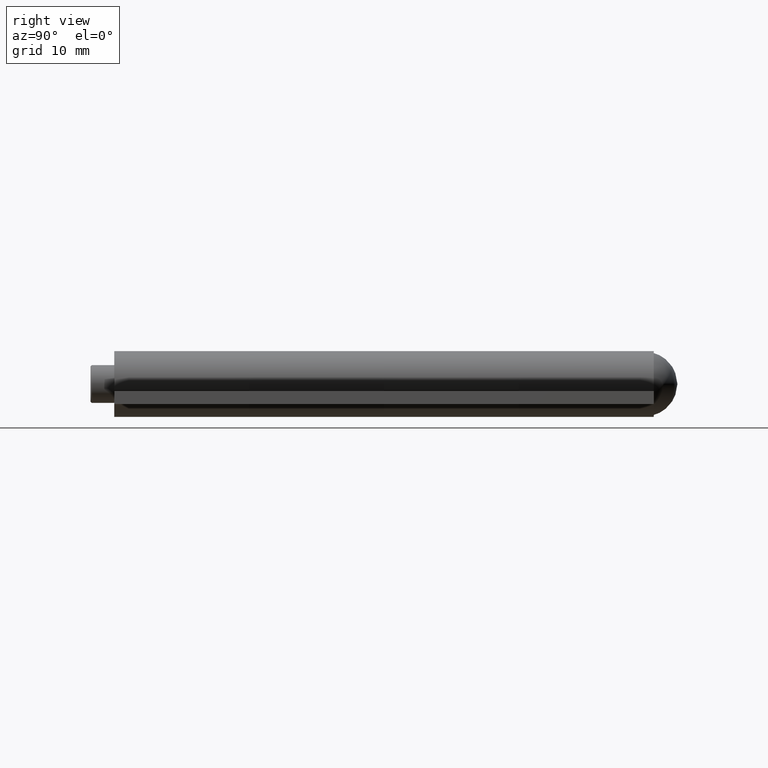
[diagram: clean part render]
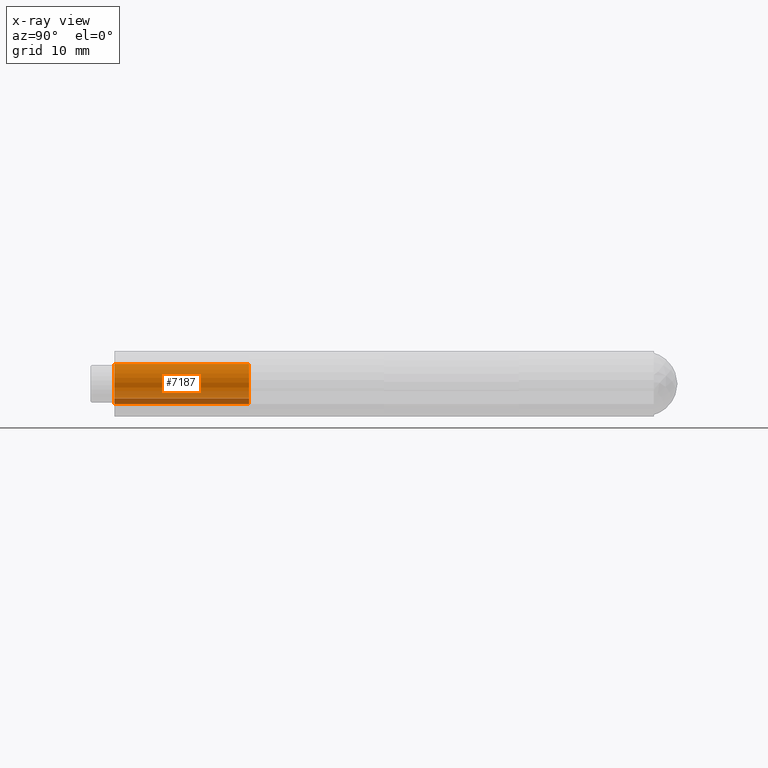
[diagram: x-ray — body ghosted, one internal face saturated and labeled with its STEP entity id]
A machine part, right view, then the same camera in x-ray: the body is ghosted and one INTERNAL B-rep face — a face not visible from any outside direction — is saturated and labeled: STEP entity #7187.
In plain terms, the highlighted cylindrical surface (edge-blend (fillet) strip) has radius 1.85 mm, axis along (0, 1, -0).
Its self-contained STEP definition (entity closure, byte-faithful):
#8 = CARTESIAN_POINT ( 'NONE',  ( -1.288352935804951027, 25.00000000000000000, -1.327647058823528514 ) ) ;
#280 = VERTEX_POINT ( 'NONE', #4200 ) ;
#357 = EDGE_LOOP ( 'NONE', ( #10058, #4998, #2402, #2741 ) ) ;
#664 = EDGE_CURVE ( 'NONE', #1003, #3884, #8104, .T. ) ;
#835 = CARTESIAN_POINT ( 'NONE',  ( 0.000000000000000000, 25.00000000000000000, 0.000000000000000000 ) ) ;
#1003 = VERTEX_POINT ( 'NONE', #3998 ) ;
#1254 = CIRCLE ( 'NONE', #3700, 1.850000000000000533 ) ;
#1811 = AXIS2_PLACEMENT_3D ( 'NONE', #835, #2511, #8372 ) ;
#1931 = VECTOR ( 'NONE', #4387, 1000.000000000000000 ) ;
#2385 = DIRECTION ( 'NONE',  ( -0.000000000000000000, -1.000000000000000000, -0.000000000000000000 ) ) ;
#2402 = ORIENTED_EDGE ( 'NONE', *, *, #10122, .F. ) ;
#2511 = DIRECTION ( 'NONE',  ( -0.000000000000000000, -1.000000000000000000, -0.000000000000000000 ) ) ;
#2741 = ORIENTED_EDGE ( 'NONE', *, *, #6492, .F. ) ;
#3700 = AXIS2_PLACEMENT_3D ( 'NONE', #5734, #2385, #9101 ) ;
#3884 = VERTEX_POINT ( 'NONE', #8101 ) ;
#3998 = CARTESIAN_POINT ( 'NONE',  ( -1.288352935804950805, 12.49999999999999645, -1.327647058823528292 ) ) ;
#4200 = CARTESIAN_POINT ( 'NONE',  ( -1.288352935804951027, 25.00000000000000000, -1.327647058823528514 ) ) ;
#4387 = DIRECTION ( 'NONE',  ( -0.000000000000000000, -1.000000000000000000, -0.000000000000000000 ) ) ;
#4865 = EDGE_CURVE ( 'NONE', #280, #1003, #5270, .T. ) ;
#4998 = ORIENTED_EDGE ( 'NONE', *, *, #664, .T. ) ;
#5270 = LINE ( 'NONE', #8, #6329 ) ;
#5424 = DIRECTION ( 'NONE',  ( -1.000000000000000000, 0.000000000000000000, 0.000000000000000000 ) ) ;
#5659 = FACE_OUTER_BOUND ( 'NONE', #357, .T. ) ;
#5734 = CARTESIAN_POINT ( 'NONE',  ( 0.000000000000000000, 25.00000000000000000, 0.000000000000000000 ) ) ;
#6137 = VERTEX_POINT ( 'NONE', #10126 ) ;
#6329 = VECTOR ( 'NONE', #6627, 1000.000000000000000 ) ;
#6492 = EDGE_CURVE ( 'NONE', #280, #6137, #1254, .T. ) ;
#6627 = DIRECTION ( 'NONE',  ( -0.000000000000000000, -1.000000000000000000, -0.000000000000000000 ) ) ;
#6708 = CYLINDRICAL_SURFACE ( 'NONE', #1811, 1.850000000000000533 ) ;
#7187 = ADVANCED_FACE ( 'NONE', ( #5659 ), #6708, .F. ) ;
#7982 = CARTESIAN_POINT ( 'NONE',  ( 0.000000000000000000, 12.49999999999999645, 0.000000000000000000 ) ) ;
#8101 = CARTESIAN_POINT ( 'NONE',  ( -1.819672131147541672, 12.49999999999999645, -0.3336065573770494175 ) ) ;
#8104 = CIRCLE ( 'NONE', #10362, 1.850000000000000533 ) ;
#8372 = DIRECTION ( 'NONE',  ( 0.000000000000000000, 0.000000000000000000, -1.000000000000000000 ) ) ;
#8813 = DIRECTION ( 'NONE',  ( 1.156482317317871478E-16, -1.000000000000000000, -0.000000000000000000 ) ) ;
#9101 = DIRECTION ( 'NONE',  ( 0.000000000000000000, 0.000000000000000000, 1.000000000000000000 ) ) ;
#10058 = ORIENTED_EDGE ( 'NONE', *, *, #4865, .T. ) ;
#10122 = EDGE_CURVE ( 'NONE', #6137, #3884, #10718, .T. ) ;
#10126 = CARTESIAN_POINT ( 'NONE',  ( -1.819672131147541672, 25.00000000000000000, -0.3336065573770494175 ) ) ;
#10337 = CARTESIAN_POINT ( 'NONE',  ( -1.819672131147541672, 25.00000000000000000, -0.3336065573770494175 ) ) ;
#10362 = AXIS2_PLACEMENT_3D ( 'NONE', #7982, #8813, #5424 ) ;
#10718 = LINE ( 'NONE', #10337, #1931 ) ;